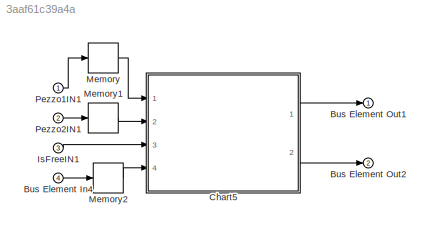
MODEL slx_3aaf61c39a4a
KIND model
CONFIG AbsTol = auto
CONFIG EnableMultiTasking = off
CONFIG FixedStep = auto
CONFIG MaxStep = auto
CONFIG MinStep = auto
CONFIG RelTol = 1e-3
CONFIG SampleTimeConstraint = Unconstrained
CONFIG Solver = VariableStepAuto
CONFIG SolverName = VariableStepAuto
CONFIG StartTime = 0.0
CONFIG StopTime = 10.0
BLOCK [Inport] Bus Element In4
  IconDisplay = Port number
  Port = 4
BLOCK [Outport] Bus Element Out1
  IconDisplay = Port number
BLOCK [Outport] Bus Element Out2
  IconDisplay = Port number
  Port = 2
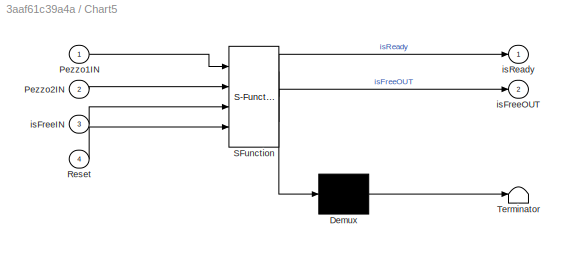
BLOCK [SubSystem] Chart5
  BlockKeywords = __PRM__SERIALIZED__DATA__:Stateflow Chart,Stateflow Diagram
  ErrorFcn = Stateflow.Translate.translate
  PermitHierarchicalResolution = ExplicitOnly
  Ports = [4, 2]
  RequestExecContextInheritance = off
  SFBlockType = Chart
  TreatAsAtomicUnit = on
BLOCK [Demux] Chart5/ Demux 
  Outputs = 1
  Ports = [1, 1]
BLOCK [S-Function] Chart5/ SFunction 
  EnableBusSupport = on
  FunctionName = sf_sfun
  PortCounts = [4 3]
  Ports = [4, 3]
  SFcnIsStateOwnerBlock = off
  SFunctionDeploymentMode = off
  Tag = Stateflow S-Function Check 7
BLOCK [Terminator] Chart5/ Terminator 
BLOCK [Inport] Chart5/Pezzo1IN
  IconDisplay = Port number
BLOCK [Inport] Chart5/Pezzo2IN
  IconDisplay = Port number
  Port = 2
BLOCK [Inport] Chart5/Reset
  IconDisplay = Port number
  Port = 4
BLOCK [Inport] Chart5/isFreeIN
  IconDisplay = Port number
  Port = 3
BLOCK [Outport] Chart5/isFreeOUT
  IconDisplay = Port number
  Port = 2
  VectorParamsAs1DForOutWhenUnconnected = on
BLOCK [Outport] Chart5/isReady
  IconDisplay = Port number
  VectorParamsAs1DForOutWhenUnconnected = on
BLOCK [Inport] IsFreeIN1
  IconDisplay = Port number
  Port = 3
BLOCK [Memory] Memory
BLOCK [Memory] Memory1
BLOCK [Memory] Memory2
BLOCK [Inport] Pezzo1IN1
  IconDisplay = Port number
BLOCK [Inport] Pezzo2IN1
  IconDisplay = Port number
  Port = 2
LINE Bus Element In4:1 -> Memory2:1
LINE Chart5:1 -> Bus Element Out1:1
LINE Chart5:2 -> Bus Element Out2:1
LINE IsFreeIN1:1 -> Chart5:3
LINE Memory1:1 -> Chart5:2
LINE Memory2:1 -> Chart5:4
LINE Memory:1 -> Chart5:1
LINE Pezzo1IN1:1 -> Memory:1
LINE Pezzo2IN1:1 -> Memory1:1
CHART Chart5 states=4 transitions=5
  STATE_LABEL 'Idle'
  STATE_LABEL 'Pezzo1Available\n'
  STATE_LABEL 'Pezzo2Available\n'
  STATE_LABEL 'Check\n isReady = 1;\n isFreeOUT = 1;'
